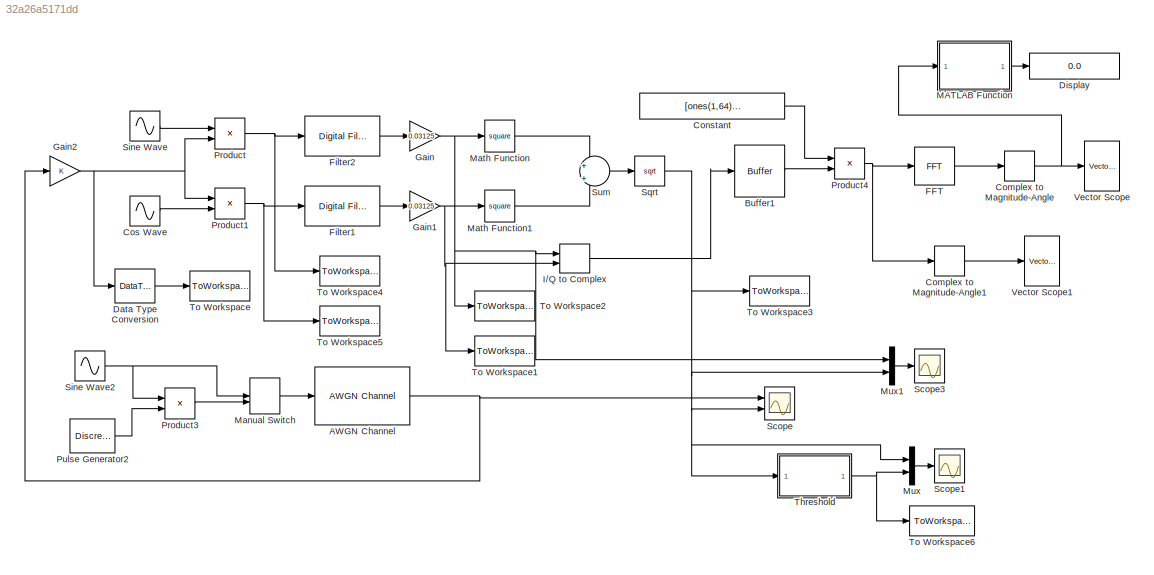
MODEL slx_32a26a5171dd
KIND model
BLOCK [Reference] AWGN Channel  REF=commchan3/AWGN
Channel
  EbNodB = 10
  EsNodB = 10
  InputProcessing = Inherited (this choice will be removed - see release notes)
  Ports = [1, 1]
  Ps = 0.125
  SNRdB = 15
  SourceBlock = commchan3/AWGN\nChannel
  SourceType = AWGN Channel
  Tsym = 1
  UserDataPersistent = on
  bitsPerSym = 1
  noiseMode = Signal to noise ratio  (SNR)
  seed = 67
  variance = 1
BLOCK [Buffer] Buffer1
  N = 64+64
  TreatMby1Signals = One channel
BLOCK [ComplexToMagnitudeAngle] Complex to Magnitude-Angle
  Output = Magnitude
  Ports = [1, 1]
BLOCK [ComplexToMagnitudeAngle] Complex to Magnitude-Angle1
  Output = Magnitude
  Ports = [1, 1]
BLOCK [Constant] Constant
  FramePeriod = 1/1e6
  SampleTime = 1/2e6
  SamplingMode = Frame based
  Value = [ones(1,64) zeros(1,64)]'
  VectorParams1D = off
BLOCK [Sin] Cos Wave
  Frequency = 2*pi*32e6
  Phase = pi/2
  Ports = [0, 1]
  SampleTime = 1/128e6
BLOCK [DataTypeConversion] Data Type Conversion
  OutDataTypeStr = double
  RndMeth = Floor
  SaturateOnIntegerOverflow = off
BLOCK [Display] Display
  Decimation = 1
  Lockdown = off
  Ports = [1]
BLOCK [Reference] FFT  REF=dspxfrm3/FFT
  BitRevOrder = off
  CompMethod = Table lookup
  FFTImplementation = Radix-2
  FFTLength = 64+64
  InheritFFTLength = off
  LockScale = off
  Ports = [1, 1]
  RowConvenienceOn = on
  SkipNorm = on
  SourceBlock = dspxfrm3/FFT
  SourceType = FFT
  TableOpt = NEW
  TableOptActive = Speed
  accumDataTypeStr = Inherit: Inherit via internal rule
  accumFracLength = 30
  accumLastDataTypeStr = Inherit: Inherit via internal rule
  accumMode = Inherit via internal rule
  accumWordLength = 32
  additionalParams = off
  allowOverrides = on
  firstCoeffDataTypeStr = Inherit: Same word length as input
  firstCoeffFracLength = 15
  firstCoeffLastDataTypeStr = Inherit: Same word length as input
  firstCoeffMode = Same word length as input
  firstCoeffWordLength = 16
  outputDataTypeStr = Inherit: Inherit via internal rule
  outputFracLength = 15
  outputLastDataTypeStr = Inherit: Inherit via internal rule
  outputMax = []
  outputMin = []
  outputMode = Inherit via internal rule
  outputWordLength = 16
  overflowMode = off
  prodOutputDataTypeStr = Inherit: Inherit via internal rule
  prodOutputFracLength = 30
  prodOutputLastDataTypeStr = Inherit: Inherit via internal rule
  prodOutputMode = Inherit via internal rule
  prodOutputWordLength = 32
  roundingMode = Floor
BLOCK [Reference] Filter1  REF=dsparch4/Digital Filter
  AllPoleFiltStruct = Direct form
  BiQuadCoeffs = [1 0.3 0.4 1 0.1 0.2]
  CoeffSource = Specify via dialog
  DenCoeffs = round( [1 -2.026 2.148 -1.159 0.279].*2^15)/2^15
  FIRFiltStruct = Direct form
  FiltPerSampPopup = One filter per frame
  FilterSource = Specify via dialog
  IC = 0
  ICden = 0
  ICnum = 0
  IIRFiltStruct = Direct form II
  InputProcessing = Elements as channels (sample based)
  LatticeCoeffs = [0.2 0.4]
  LockScale = off
  NumCoeffs = round( [0.028 0.053 0.071 0.053 0.028].*2^20)/2^15
  Ports = [1, 1]
  ScaleValues = 1
  SourceBlock = dsparch4/Digital Filter
  SourceType = Digital Filter
  Tag = BlockMethodSubSystem
  TypePopup = IIR (poles & zeros)
  UserDataPersistent = on
  accumFracLength = 35
  accumMode = Binary point scaling
  accumWordLength = 42
  additionalParams = off
  allowOverrides = on
  denIgnore = on
  dfiltObjectName = dfilt.dffir([1 2 1])
  firstCoeffFracLength = 15
  firstCoeffMode = Binary point scaling
  firstCoeffWordLength = 18
  memoryFracLength = 20
  memoryMode = Binary point scaling
  memoryWordLength = 24
  multiplicandFracLength = 30
  multiplicandMode = Same as output
  multiplicandWordLength = 32
  outputFracLength = 13
  outputMode = Binary point scaling
  outputWordLength = 14
  overflowMode = off
  prodOutputFracLength = 35
  prodOutputMode = Binary point scaling
  prodOutputWordLength = 42
  roundingMode = Floor
  scaleValueFracLength = 14
  secondCoeffFracLength = 15
  secondCoeffMode = Same as numerator
  secondCoeffWordLength = 16
  showAcc = off
  showCoeff = off
  showMem = off
  showMpy = off
  showOut = off
  stageIOMode = Same as input
  stageIOWordLength = 16
  stageInFracLength = 15
  stageOutFracLength = 15
  tapSumFracLength = 30
  tapSumMode = Same as input
  tapSumWordLength = 32
  thirdCoeffFracLength = 15
  thirdCoeffMode = Same as input
  thirdCoeffWordLength = 16
BLOCK [Reference] Filter2  REF=dsparch4/Digital Filter
  AllPoleFiltStruct = Direct form
  BiQuadCoeffs = [1 0.3 0.4 1 0.1 0.2]
  CoeffSource = Specify via dialog
  DenCoeffs = round( [1 -2.026 2.148 -1.159 0.279].*2^15)/2^15
  FIRFiltStruct = Direct form
  FiltPerSampPopup = One filter per frame
  FilterSource = Specify via dialog
  IC = 0
  ICden = 0
  ICnum = 0
  IIRFiltStruct = Direct form II
  InputProcessing = Elements as channels (sample based)
  LatticeCoeffs = [0.2 0.4]
  LockScale = off
  NumCoeffs = round( [0.028 0.053 0.071 0.053 0.028].*2^20)/2^15
  Ports = [1, 1]
  ScaleValues = 1
  SourceBlock = dsparch4/Digital Filter
  SourceType = Digital Filter
  Tag = BlockMethodSubSystem
  TypePopup = IIR (poles & zeros)
  UserDataPersistent = on
  accumFracLength = 35
  accumMode = Binary point scaling
  accumWordLength = 42
  additionalParams = off
  allowOverrides = on
  denIgnore = on
  dfiltObjectName = dfilt.dffir([1 2 1])
  firstCoeffFracLength = 15
  firstCoeffMode = Binary point scaling
  firstCoeffWordLength = 18
  memoryFracLength = 20
  memoryMode = Binary point scaling
  memoryWordLength = 24
  multiplicandFracLength = 30
  multiplicandMode = Same as output
  multiplicandWordLength = 32
  outputFracLength = 13
  outputMode = Binary point scaling
  outputWordLength = 14
  overflowMode = off
  prodOutputFracLength = 35
  prodOutputMode = Binary point scaling
  prodOutputWordLength = 42
  roundingMode = Floor
  scaleValueFracLength = 14
  secondCoeffFracLength = 15
  secondCoeffMode = Same as numerator
  secondCoeffWordLength = 16
  showAcc = off
  showCoeff = off
  showMem = off
  showMpy = off
  showOut = off
  stageIOMode = Same as input
  stageIOWordLength = 16
  stageInFracLength = 15
  stageOutFracLength = 15
  tapSumFracLength = 30
  tapSumMode = Same as input
  tapSumWordLength = 32
  thirdCoeffFracLength = 15
  thirdCoeffMode = Same as input
  thirdCoeffWordLength = 16
BLOCK [Gain] Gain
  Gain = 0.03125
  OutDataTypeStr = Inherit: Inherit via internal rule
  ParamDataTypeStr = Inherit: Inherit via internal rule
  SaturateOnIntegerOverflow = off
BLOCK [Gain] Gain1
  Gain = 0.03125
  OutDataTypeStr = Inherit: Inherit via internal rule
  ParamDataTypeStr = Inherit: Inherit via internal rule
  SaturateOnIntegerOverflow = off
BLOCK [Gain] Gain2
  OutDataTypeStr = fixdt(1,14,13)
  ParamDataTypeStr = Inherit: Inherit via internal rule
  RndMeth = Round
  SampleTime = 1/128e6
BLOCK [RealImagToComplex] I//Q to Complex
  Ports = [2, 1]
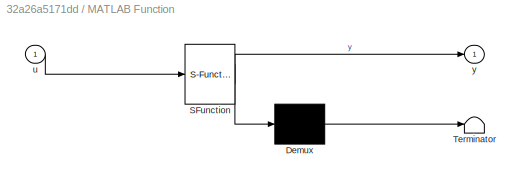
BLOCK [SubSystem] MATLAB Function
  ErrorFcn = Stateflow.Translate.translate
  FunctionWithSeparateData = off
  MaskHideContents = off
  MinAlgLoopOccurrences = off
  Opaque = off
  PermitHierarchicalResolution = ExplicitOnly
  Ports = [1, 1]
  PropExecContextOutsideSubsystem = off
  RTWSystemCode = Auto
  RequestExecContextInheritance = off
  SFBlockType = MATLAB Function
  TreatAsAtomicUnit = on
BLOCK [Demux] MATLAB Function/ Demux 
  Outputs = 1
  Ports = [1, 1]
BLOCK [S-Function] MATLAB Function/ SFunction 
  EnableBusSupport = on
  FunctionName = sf_sfun
  PortCounts = [1 2]
  Ports = [1, 2]
  Tag = Stateflow S-Function ifm 1
BLOCK [Terminator] MATLAB Function/ Terminator 
BLOCK [Inport] MATLAB Function/u
  IconDisplay = Port number
BLOCK [Outport] MATLAB Function/y
  IconDisplay = Port number
BLOCK [ManualSwitch] Manual Switch
BLOCK [Math] Math Function
  Operator = square
  Ports = [1, 1]
BLOCK [Math] Math Function1
  Operator = square
  Ports = [1, 1]
BLOCK [Mux] Mux
  DisplayOption = bar
  Inputs = 2
  Ports = [2, 1]
BLOCK [Mux] Mux1
  DisplayOption = bar
  Inputs = 2
  Ports = [2, 1]
BLOCK [Product] Product
  InputSameDT = off
  OutDataTypeStr = Inherit: Inherit via internal rule
  Ports = [2, 1]
BLOCK [Product] Product1
  InputSameDT = off
  OutDataTypeStr = Inherit: Inherit via internal rule
  Ports = [2, 1]
BLOCK [Product] Product3
  InputSameDT = off
  OutDataTypeStr = Inherit: Inherit via internal rule
  Ports = [2, 1]
  SampleTime = 1/128e6
  SaturateOnIntegerOverflow = off
BLOCK [Product] Product4
  InputSameDT = off
  OutDataTypeStr = Inherit: Inherit via internal rule
  Ports = [2, 1]
  SaturateOnIntegerOverflow = off
BLOCK [DiscretePulseGenerator] Pulse Generator2
  Period = 20e-6
  Ports = [0, 1]
  PulseType = Time based
  PulseWidth = 4
BLOCK [Scope] Scope
  DataFormat = StructureWithTime
  Floating = off
  LimitDataPoints = off
  NumInputPorts = 2
  Ports = [2]
  SampleTime = 0
  ShowLegends = off
  TimeRange = 0.02
  YMax = 8.5~5
  YMin = 0~-5
  ZoomMode = xonly
BLOCK [Scope] Scope1
  DataFormat = StructureWithTime
  Floating = off
  LimitDataPoints = off
  NumInputPorts = 1
  Ports = [1]
  SampleTime = 0
  SaveName = ScopeData1
  ShowLegends = off
  TimeRange = 0.02
  YMax = 8.5
  YMin = 0
  ZoomMode = xonly
BLOCK [Scope] Scope3
  DataFormat = StructureWithTime
  Floating = off
  LimitDataPoints = off
  NumInputPorts = 1
  Ports = [1]
  SampleTime = 0
  SaveName = ScopeData3
  ShowLegends = off
  TimeRange = 0.02
  YMax = 8.5
  YMin = 0
  ZoomMode = xonly
BLOCK [Sin] Sine Wave
  Frequency = 2*pi*32e6
  Ports = [0, 1]
  SampleTime = 1/128e6
BLOCK [Sin] Sine Wave2
  Amplitude = .5
  Frequency = 2*pi*163.7e6
  Ports = [0, 1]
  SampleTime = 1/128e6
BLOCK [Sqrt] Sqrt
BLOCK [Sum] Sum
  IconShape = round
  InputSameDT = off
  Inputs = +|+
  OutDataTypeStr = Inherit: Inherit via internal rule
  Ports = [2, 1]
  SaturateOnIntegerOverflow = off
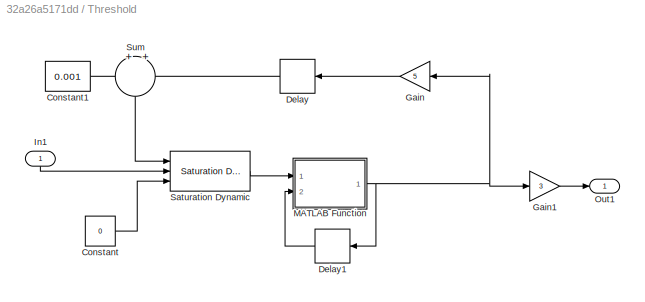
BLOCK [SubSystem] Threshold
  FunctionWithSeparateData = off
  MaskHideContents = off
  MinAlgLoopOccurrences = off
  Opaque = off
  Ports = [1, 1]
  PropExecContextOutsideSubsystem = off
  RTWSystemCode = Auto
  RequestExecContextInheritance = off
BLOCK [Constant] Threshold/Constant
  SampleTime = 1/128e6
  Value = 0
BLOCK [Constant] Threshold/Constant1
  SampleTime = 1/128e6
  Value = 0.001
BLOCK [Delay] Threshold/Delay
  DelayLength = 1
  InitialCondition = 0
  InputPortMap = u0
  Ports = [1, 1]
BLOCK [Delay] Threshold/Delay1
  DelayLength = 1
  InitialCondition = 0
  InputPortMap = u0
  Ports = [1, 1]
BLOCK [Gain] Threshold/Gain
  Gain = 5
  OutDataTypeStr = Inherit: Inherit via internal rule
  ParamDataTypeStr = Inherit: Inherit via internal rule
  SaturateOnIntegerOverflow = off
BLOCK [Gain] Threshold/Gain1
  Gain = 3
  OutDataTypeStr = Inherit: Inherit via internal rule
  ParamDataTypeStr = Inherit: Inherit via internal rule
  SaturateOnIntegerOverflow = off
BLOCK [Inport] Threshold/In1
  IconDisplay = Port number
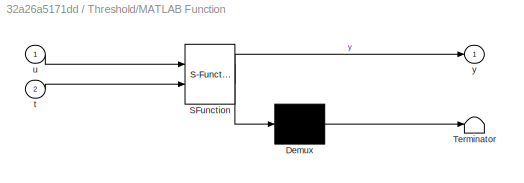
BLOCK [SubSystem] Threshold/MATLAB Function
  ErrorFcn = Stateflow.Translate.translate
  FunctionWithSeparateData = off
  MaskHideContents = off
  MinAlgLoopOccurrences = off
  Opaque = off
  PermitHierarchicalResolution = ExplicitOnly
  Ports = [2, 1]
  PropExecContextOutsideSubsystem = off
  RTWSystemCode = Auto
  RequestExecContextInheritance = off
  SFBlockType = MATLAB Function
  TreatAsAtomicUnit = on
BLOCK [Demux] Threshold/MATLAB Function/ Demux 
  Outputs = 1
  Ports = [1, 1]
BLOCK [S-Function] Threshold/MATLAB Function/ SFunction 
  EnableBusSupport = on
  FunctionName = sf_sfun
  PortCounts = [2 2]
  Ports = [2, 2]
  Tag = Stateflow S-Function ifm 2
BLOCK [Terminator] Threshold/MATLAB Function/ Terminator 
BLOCK [Inport] Threshold/MATLAB Function/t
  IconDisplay = Port number
  Port = 2
BLOCK [Inport] Threshold/MATLAB Function/u
  IconDisplay = Port number
BLOCK [Outport] Threshold/MATLAB Function/y
  IconDisplay = Port number
BLOCK [Outport] Threshold/Out1
  IconDisplay = Port number
BLOCK [Reference] Threshold/Saturation Dynamic  REF=simulink/Discontinuities/Saturation
Dynamic
  DoSatur = off
  LockScale = off
  OutDataType = fixdt(1, 16)
  OutDataTypeStr = Inherit: Same as second input
  OutMax = []
  OutMin = []
  OutScaling = 2^-10
  OutputDataTypeScalingMode = Same as second input
  Ports = [3, 1]
  RndMeth = Floor
  SourceBlock = simulink/Discontinuities/Saturation\nDynamic
  SourceType = Saturation Dynamic
BLOCK [Sum] Threshold/Sum
  IconShape = round
  InputSameDT = off
  Inputs = +|+
  OutDataTypeStr = Inherit: Inherit via internal rule
  Ports = [2, 1]
  SaturateOnIntegerOverflow = off
BLOCK [ToWorkspace] To Workspace
  MaxDataPoints = inf
  Ports = [1]
  SampleTime = -1
  SaveFormat = Timeseries
  VariableName = if_in
BLOCK [ToWorkspace] To Workspace1
  MaxDataPoints = inf
  Ports = [1]
  SampleTime = -1
  SaveFormat = Timeseries
  VariableName = Q_sig
BLOCK [ToWorkspace] To Workspace2
  MaxDataPoints = inf
  Ports = [1]
  SampleTime = -1
  SaveFormat = Timeseries
  VariableName = I_sig
BLOCK [ToWorkspace] To Workspace3
  MaxDataPoints = inf
  Ports = [1]
  SampleTime = -1
  SaveFormat = Timeseries
  VariableName = sqrt_out
BLOCK [ToWorkspace] To Workspace4
  MaxDataPoints = inf
  Ports = [1]
  SampleTime = -1
  SaveFormat = Timeseries
  VariableName = I_Down
BLOCK [ToWorkspace] To Workspace5
  MaxDataPoints = inf
  Ports = [1]
  SampleTime = -1
  SaveFormat = Timeseries
  VariableName = Q_Down
BLOCK [ToWorkspace] To Workspace6
  MaxDataPoints = inf
  Ports = [1]
  SampleTime = -1
  SaveFormat = Timeseries
  VariableName = Noise_Mean
BLOCK [Reference] Vector Scope  REF=dspsnks4/Vector
Scope
  AxisGrid = on
  AxisLegend = on
  AxisProperties = off
  AxisZoom = off
  DisplayProperties = off
  Domain = Frequency
  FigPos = get(0,'defaultfigureposition')
  FrameNumber = on
  HorizSpan = 1
  InheritXIncr = on
  LineColors = [0 0 1]
  LineMarkers = o
  LineProperties = off
  Memory = off
  OpenScopeAtSimStart = on
  OpenScopeImmediately = off
  Ports = [1]
  ScopeProperties = on
  ShowPortLabels = off
  SourceBlock = dspsnks4/Vector\nScope
  SourceType = Vector Scope
  XAxisParamsVer = 6.9
  XIncr = 1
  XLabel = Time
  XLimit = User-defined
  XMax = 128000000
  XMin = 0
  XRange = [0...Fs]
  XStart = 0
  XUnits = Hertz
  YLabel = Amplitude
  YMax = -11.244
  YMin = -50.0064
  YUnits = Magnitude
BLOCK [Reference] Vector Scope1  REF=dspsnks4/Vector
Scope
  AxisGrid = on
  AxisLegend = on
  AxisProperties = off
  AxisZoom = off
  DisplayProperties = off
  Domain = User-defined
  FigPos = get(0,'defaultfigureposition')
  FrameNumber = on
  HorizSpan = 1
  InheritXIncr = on
  LineMarkers = o
  LineProperties = off
  Memory = off
  OpenScopeAtSimStart = on
  OpenScopeImmediately = off
  Ports = [1]
  ScopeProperties = on
  ShowPortLabels = off
  SourceBlock = dspsnks4/Vector\nScope
  SourceType = Vector Scope
  XAxisParamsVer = 6.9
  XIncr = 1
  XLabel = Time
  XLimit = Auto
  XMax = 1
  XMin = 0
  XRange = [0...Fs]
  XStart = 0
  XUnits = Hertz
  YLabel = Amplitude
  YMax = 10
  YMin = -10
  YUnits = dB
NET AWGN Channel:1 -> Gain2:1, Scope:1
LINE Buffer1:1 -> Product4:2
LINE Complex to Magnitude-Angle1:1 -> Vector Scope1:1
NET Complex to Magnitude-Angle:1 -> MATLAB Function:1, Vector Scope:1
LINE Constant:1 -> Product4:1
LINE Cos Wave:1 -> Product1:2
LINE Data Type Conversion:1 -> To Workspace:1
LINE FFT:1 -> Complex to Magnitude-Angle:1
LINE Filter1:1 -> Gain1:1
LINE Filter2:1 -> Gain:1
NET Gain1:1 -> I//Q to Complex:2, Math Function1:1, To Workspace1:1
NET Gain2:1 -> Data Type Conversion:1, Product1:1, Product:2
NET Gain:1 -> I//Q to Complex:1, Math Function:1, Mux1:1, To Workspace2:1
LINE I//Q to Complex:1 -> Buffer1:1
LINE MATLAB Function:1 -> Display:1
LINE Manual Switch:1 -> AWGN Channel:1
LINE Math Function1:1 -> Sum:2
LINE Math Function:1 -> Sum:1
LINE Mux1:1 -> Scope3:1
LINE Mux:1 -> Scope1:1
NET Product1:1 -> Filter1:1, To Workspace5:1
LINE Product3:1 -> Manual Switch:2
NET Product4:1 -> Complex to Magnitude-Angle1:1, FFT:1
NET Product:1 -> Filter2:1, To Workspace4:1
LINE Pulse Generator2:1 -> Product3:2
NET Sine Wave2:1 -> Manual Switch:1, Product3:1
LINE Sine Wave:1 -> Product:1
NET Sqrt:1 -> Mux1:2, Mux:1, Scope:2, Threshold:1, To Workspace3:1
LINE Sum:1 -> Sqrt:1
LINE Threshold/Constant1:1 -> Threshold/Sum:1
LINE Threshold/Constant:1 -> Threshold/Saturation Dynamic:3
LINE Threshold/Delay1:1 -> Threshold/MATLAB Function:2
LINE Threshold/Delay:1 -> Threshold/Sum:2
LINE Threshold/Gain1:1 -> Threshold/Out1:1
LINE Threshold/Gain:1 -> Threshold/Delay:1
LINE Threshold/In1:1 -> Threshold/Saturation Dynamic:2
NET Threshold/MATLAB Function:1 -> Threshold/Delay1:1, Threshold/Gain1:1, Threshold/Gain:1
LINE Threshold/Saturation Dynamic:1 -> Threshold/MATLAB Function:1
LINE Threshold/Sum:1 -> Threshold/Saturation Dynamic:1
NET Threshold:1 -> Mux:2, To Workspace6:1
note: NET lines group one-source signal fan-out (src -> all destinations, sorted); 1:1 wires keep LINE
